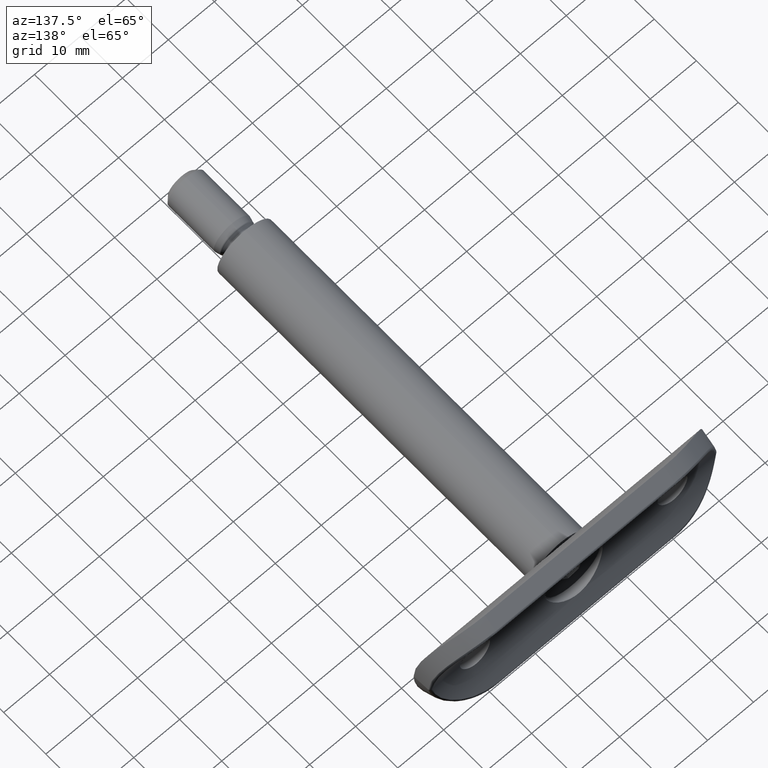
[diagram: clean part render]
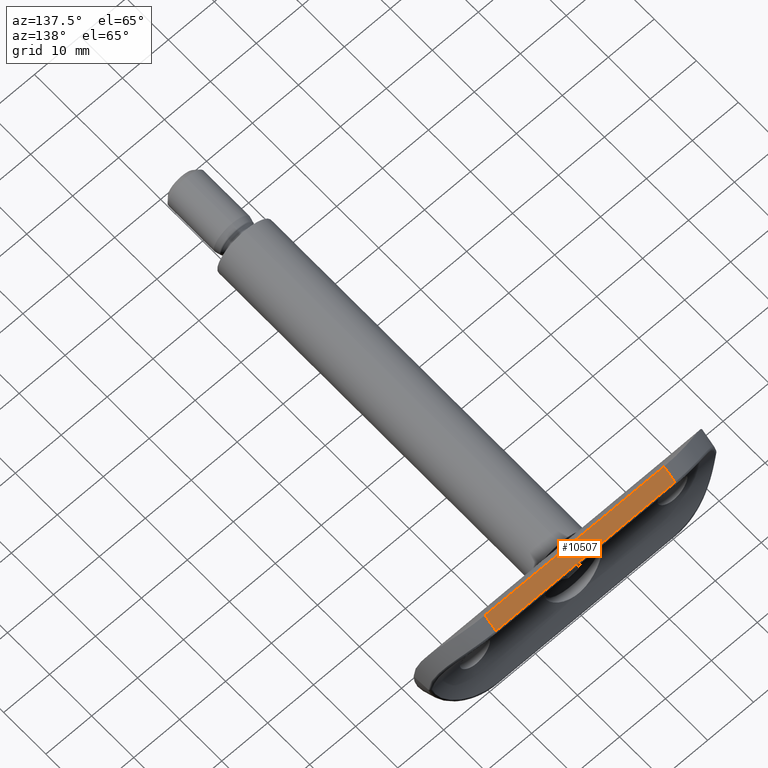
[diagram: same view with one face highlighted and labeled with its STEP entity id]
A machine part, auxiliary view. The second image highlights one B-rep face of the part: STEP entity #10507.
In plain terms, the highlighted planar face has unit normal (-0, -0.5839, -0.8118).
Its self-contained STEP definition (entity closure, byte-faithful):
#237 = EDGE_LOOP ( 'NONE', ( #14478, #7437, #14892, #6799 ) ) ;
#1271 = FACE_OUTER_BOUND ( 'NONE', #237, .T. ) ;
#2083 = CARTESIAN_POINT ( 'NONE',  ( 11.99999999999999800, 0.1675990936556164000, 31.50000000000000000 ) ) ;
#2195 = VECTOR ( 'NONE', #4242, 1000.000000000000000 ) ;
#2350 = VERTEX_POINT ( 'NONE', #3120 ) ;
#2701 = VECTOR ( 'NONE', #6541, 999.9999999999998900 ) ;
#3120 = CARTESIAN_POINT ( 'NONE',  ( 10.12717891536658900, 2.771195106964719800, -19.50000000000000400 ) ) ;
#3152 = DIRECTION ( 'NONE',  ( 0.5839416058394163400, -0.8117956645423057800, 0.0000000000000000000 ) ) ;
#4242 = DIRECTION ( 'NONE',  ( 0.0000000000000000000, 0.0000000000000000000, 1.000000000000000000 ) ) ;
#4630 = VECTOR ( 'NONE', #12551, 1000.000000000000000 ) ;
#5789 = CARTESIAN_POINT ( 'NONE',  ( 11.99999999999999800, 0.1675990936556164000, -19.50000000000000400 ) ) ;
#6185 = EDGE_CURVE ( 'NONE', #8996, #13253, #14305, .T. ) ;
#6541 = DIRECTION ( 'NONE',  ( -0.5839416058394163400, 0.8117956645423057800, 0.0000000000000000000 ) ) ;
#6799 = ORIENTED_EDGE ( 'NONE', *, *, #8405, .T. ) ;
#7437 = ORIENTED_EDGE ( 'NONE', *, *, #14450, .T. ) ;
#8288 = AXIS2_PLACEMENT_3D ( 'NONE', #12315, #8960, #3152 ) ;
#8405 = EDGE_CURVE ( 'NONE', #13253, #13258, #13888, .T. ) ;
#8945 = CARTESIAN_POINT ( 'NONE',  ( 10.12717891536658900, 2.771195106964719800, 19.50000000000000000 ) ) ;
#8960 = DIRECTION ( 'NONE',  ( -0.8117956645423057800, -0.5839416058394163400, 0.0000000000000000000 ) ) ;
#8996 = VERTEX_POINT ( 'NONE', #10805 ) ;
#9238 = CARTESIAN_POINT ( 'NONE',  ( 11.99999999999999800, 0.1675990936556164000, 19.50000000000000000 ) ) ;
#9570 = CARTESIAN_POINT ( 'NONE',  ( 12.00000000000000000, 0.1675990936556151800, 19.50000000000000000 ) ) ;
#10398 = LINE ( 'NONE', #8945, #2195 ) ;
#10507 = ADVANCED_FACE ( 'NONE', ( #1271 ), #12366, .F. ) ;
#10805 = CARTESIAN_POINT ( 'NONE',  ( 10.12717891536658900, 2.771195106964720700, 19.50000000000000000 ) ) ;
#11212 = EDGE_CURVE ( 'NONE', #13258, #2350, #11961, .T. ) ;
#11228 = CARTESIAN_POINT ( 'NONE',  ( 11.99999999999999800, 0.1675990936556164000, -19.50000000000000400 ) ) ;
#11961 = LINE ( 'NONE', #11228, #2701 ) ;
#12315 = CARTESIAN_POINT ( 'NONE',  ( 11.99999999999999800, 0.1675990936556164000, 31.50000000000000000 ) ) ;
#12366 = PLANE ( 'NONE',  #8288 ) ;
#12551 = DIRECTION ( 'NONE',  ( -0.0000000000000000000, -0.0000000000000000000, -1.000000000000000000 ) ) ;
#13253 = VERTEX_POINT ( 'NONE', #9238 ) ;
#13258 = VERTEX_POINT ( 'NONE', #5789 ) ;
#13285 = DIRECTION ( 'NONE',  ( 0.5839416058394163400, -0.8117956645423057800, -0.0000000000000000000 ) ) ;
#13888 = LINE ( 'NONE', #2083, #4630 ) ;
#13942 = VECTOR ( 'NONE', #13285, 999.9999999999998900 ) ;
#14305 = LINE ( 'NONE', #9570, #13942 ) ;
#14450 = EDGE_CURVE ( 'NONE', #2350, #8996, #10398, .T. ) ;
#14478 = ORIENTED_EDGE ( 'NONE', *, *, #11212, .T. ) ;
#14892 = ORIENTED_EDGE ( 'NONE', *, *, #6185, .T. ) ;